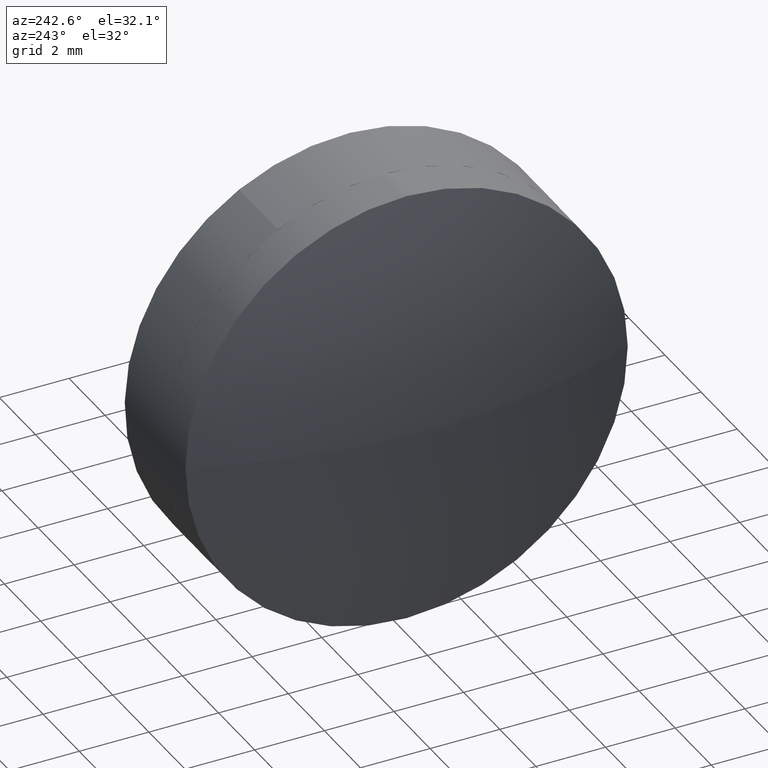
[diagram: clean part render]
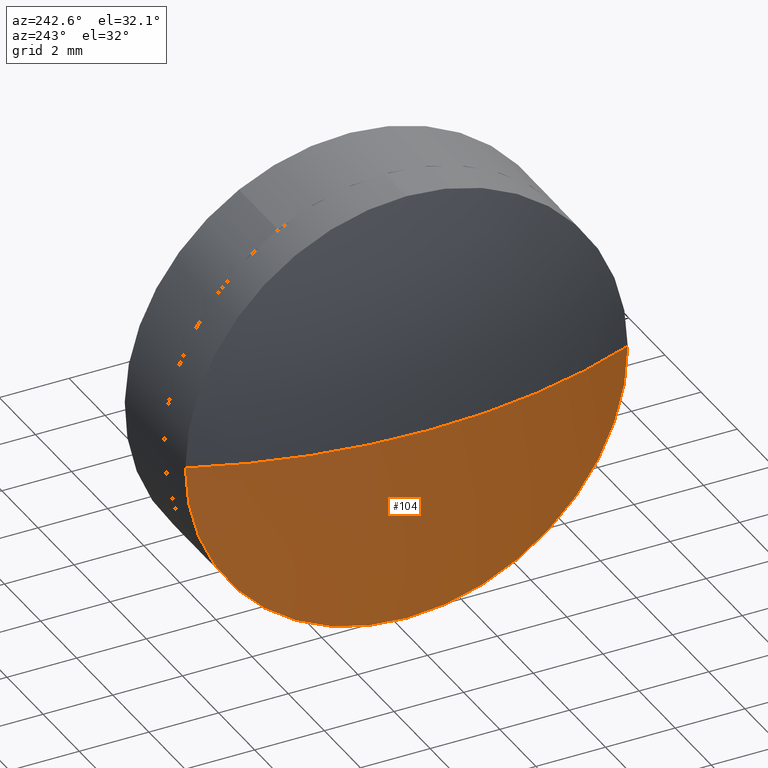
[diagram: same view with one face highlighted and labeled with its STEP entity id]
A machine part, auxiliary view. The second image highlights one B-rep face of the part: STEP entity #104.
In plain terms, the highlighted spherical surface has radius 16.75 mm.
Its self-contained STEP definition (entity closure, byte-faithful):
#52 = AXIS2_PLACEMENT_3D ( 'NONE', #212, #350, #150 ) ;
#55 = ORIENTED_EDGE ( 'NONE', *, *, #175, .F. ) ;
#57 = VERTEX_POINT ( 'NONE', #430 ) ;
#58 = VERTEX_POINT ( 'NONE', #127 ) ;
#73 = CARTESIAN_POINT ( 'NONE',  ( -51.06928922736017995, 13.86148696857247842, 0.000000000000000000 ) ) ;
#80 = EDGE_CURVE ( 'NONE', #344, #57, #371, .T. ) ;
#101 = DIRECTION ( 'NONE',  ( 0.000000000000000000, 1.000000000000000000, 0.000000000000000000 ) ) ;
#104 = ADVANCED_FACE ( 'NONE', ( #166 ), #138, .T. ) ;
#107 = DIRECTION ( 'NONE',  ( 1.000000000000000000, 0.000000000000000000, 0.000000000000000000 ) ) ;
#108 = ORIENTED_EDGE ( 'NONE', *, *, #383, .T. ) ;
#110 = DIRECTION ( 'NONE',  ( -0.000000000000000000, 0.000000000000000000, -1.000000000000000000 ) ) ;
#121 = CARTESIAN_POINT ( 'NONE',  ( -66.56896664335823743, 13.86148696857247842, -6.349999999999999645 ) ) ;
#127 = CARTESIAN_POINT ( 'NONE',  ( -66.56896664335823743, 20.21148696857247984, 0.000000000000000000 ) ) ;
#129 = EDGE_LOOP ( 'NONE', ( #400, #108, #342, #55 ) ) ;
#138 = SPHERICAL_SURFACE ( 'NONE', #262, 16.75000000000000000 ) ;
#139 = CARTESIAN_POINT ( 'NONE',  ( -51.06928922736017995, 13.86148696857247842, 0.000000000000000000 ) ) ;
#150 = DIRECTION ( 'NONE',  ( 0.000000000000000000, 0.000000000000000000, 1.000000000000000000 ) ) ;
#166 = FACE_OUTER_BOUND ( 'NONE', #129, .T. ) ;
#175 = EDGE_CURVE ( 'NONE', #58, #57, #290, .T. ) ;
#212 = CARTESIAN_POINT ( 'NONE',  ( -66.56896664335823743, 13.86148696857247842, 0.000000000000000000 ) ) ;
#215 = CARTESIAN_POINT ( 'NONE',  ( -66.56896664335823743, 13.86148696857247842, 0.000000000000000000 ) ) ;
#240 = CIRCLE ( 'NONE', #353, 6.349999999999999645 ) ;
#245 = DIRECTION ( 'NONE',  ( -1.000000000000000000, -0.000000000000000000, -0.000000000000000000 ) ) ;
#262 = AXIS2_PLACEMENT_3D ( 'NONE', #73, #110, #101 ) ;
#283 = AXIS2_PLACEMENT_3D ( 'NONE', #365, #289, #432 ) ;
#289 = DIRECTION ( 'NONE',  ( 0.000000000000000000, 1.224646799147353207E-16, -1.000000000000000000 ) ) ;
#290 = CIRCLE ( 'NONE', #362, 16.75000000000000000 ) ;
#337 = DIRECTION ( 'NONE',  ( -0.000000000000000000, 0.000000000000000000, 1.000000000000000000 ) ) ;
#342 = ORIENTED_EDGE ( 'NONE', *, *, #80, .T. ) ;
#344 = VERTEX_POINT ( 'NONE', #387 ) ;
#346 = VERTEX_POINT ( 'NONE', #121 ) ;
#350 = DIRECTION ( 'NONE',  ( -1.000000000000000000, -0.000000000000000000, -0.000000000000000000 ) ) ;
#353 = AXIS2_PLACEMENT_3D ( 'NONE', #215, #245, #384 ) ;
#362 = AXIS2_PLACEMENT_3D ( 'NONE', #139, #337, #107 ) ;
#365 = CARTESIAN_POINT ( 'NONE',  ( -51.06928922736017995, 13.86148696857247842, 0.000000000000000000 ) ) ;
#371 = CIRCLE ( 'NONE', #283, 16.75000000000000000 ) ;
#383 = EDGE_CURVE ( 'NONE', #346, #344, #402, .T. ) ;
#384 = DIRECTION ( 'NONE',  ( 0.000000000000000000, 0.000000000000000000, 1.000000000000000000 ) ) ;
#387 = CARTESIAN_POINT ( 'NONE',  ( -66.56896664335823743, 7.511486968572478773, -7.776507174585692163E-16 ) ) ;
#400 = ORIENTED_EDGE ( 'NONE', *, *, #439, .T. ) ;
#402 = CIRCLE ( 'NONE', #52, 6.349999999999999645 ) ;
#430 = CARTESIAN_POINT ( 'NONE',  ( -67.81928922736018706, 13.86148696857248019, 0.000000000000000000 ) ) ;
#432 = DIRECTION ( 'NONE',  ( 0.000000000000000000, 1.000000000000000000, 1.224646799147353454E-16 ) ) ;
#439 = EDGE_CURVE ( 'NONE', #58, #346, #240, .T. ) ;